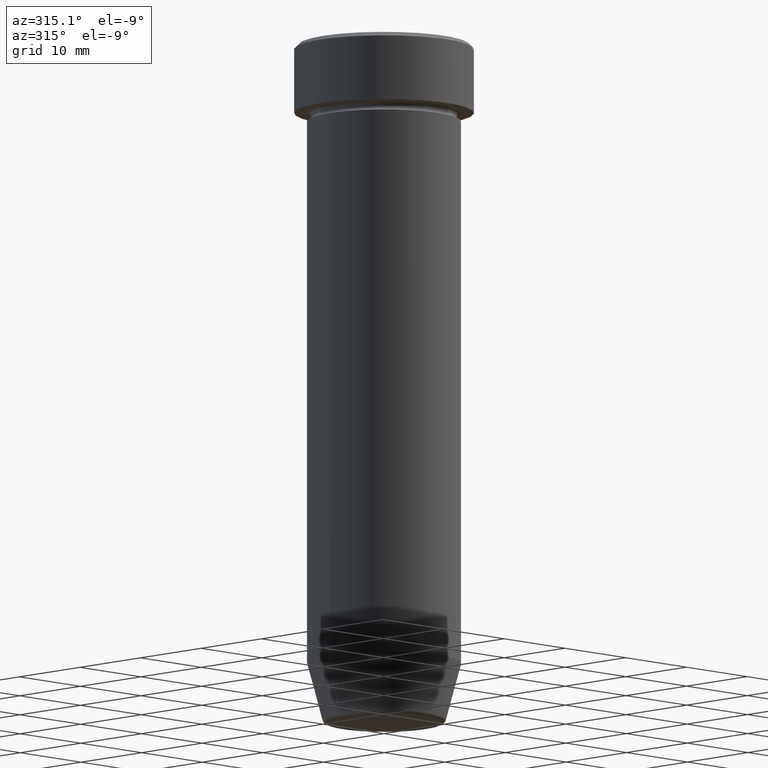
[diagram: clean part render]
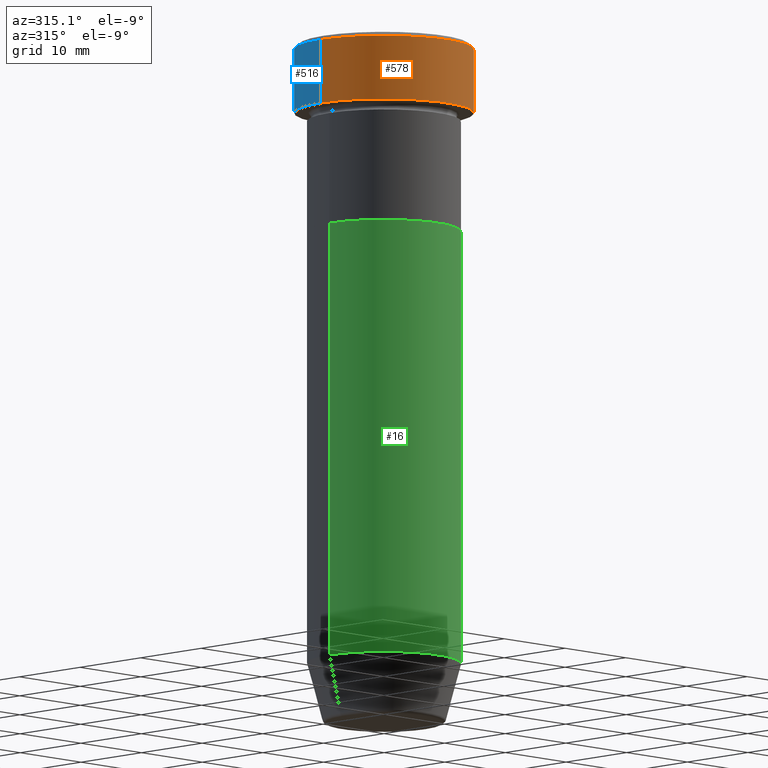
[diagram: same view with three faces highlighted in distinct colors, each labeled with its STEP entity id]
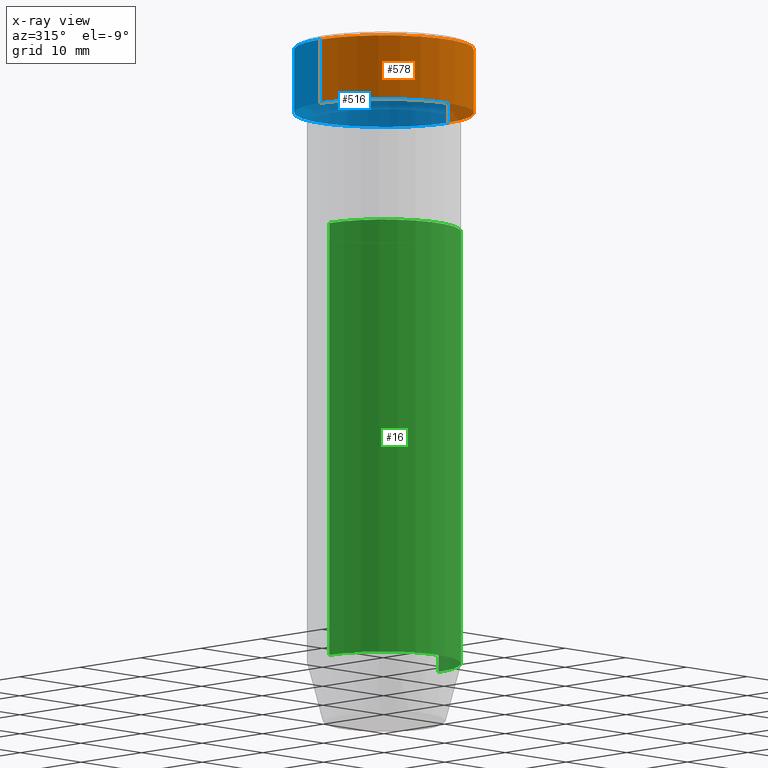
[diagram: x-ray of the same camera — body ghosted, the three highlighted faces saturated]
A machine part, auxiliary view with three faces highlighted in distinct colors.
The next image is the same camera in x-ray (body ghosted, the three faces saturated) — at least one of them is partly hidden behind the body in this view.
Their STEP definitions:

[orange] entity #578 — the highlighted cylindrical surface (partial cylindrical patch) has radius 10.5 mm, axis along (-0, -0, 1).
#1 = FACE_OUTER_BOUND ( 'NONE', #221, .T. ) ;
#4 = VECTOR ( 'NONE', #436, 1000.000000000000000 ) ;
#6 = AXIS2_PLACEMENT_3D ( 'NONE', #330, #506, #283 ) ;
#9 = VERTEX_POINT ( 'NONE', #338 ) ;
#18 = DIRECTION ( 'NONE',  ( 1.000000000000000000, 0.000000000000000000, 0.000000000000000000 ) ) ;
#48 = EDGE_CURVE ( 'NONE', #573, #9, #319, .T. ) ;
#139 = EDGE_CURVE ( 'NONE', #573, #373, #538, .T. ) ;
#144 = ORIENTED_EDGE ( 'NONE', *, *, #181, .T. ) ;
#153 = CYLINDRICAL_SURFACE ( 'NONE', #6, 10.50000000000000000 ) ;
#181 = EDGE_CURVE ( 'NONE', #9, #236, #419, .T. ) ;
#192 = VECTOR ( 'NONE', #462, 1000.000000000000000 ) ;
#218 = ORIENTED_EDGE ( 'NONE', *, *, #139, .F. ) ;
#221 = EDGE_LOOP ( 'NONE', ( #218, #292, #144, #228 ) ) ;
#228 = ORIENTED_EDGE ( 'NONE', *, *, #554, .T. ) ;
#236 = VERTEX_POINT ( 'NONE', #241 ) ;
#241 = CARTESIAN_POINT ( 'NONE',  ( 10.50000000000000000, 0.000000000000000000, -0.5000000000000023315 ) ) ;
#280 = CIRCLE ( 'NONE', #359, 10.50000000000000000 ) ;
#281 = DIRECTION ( 'NONE',  ( 1.000000000000000000, 0.000000000000000000, 0.000000000000000000 ) ) ;
#283 = DIRECTION ( 'NONE',  ( 1.000000000000000000, 0.000000000000000000, 0.000000000000000000 ) ) ;
#292 = ORIENTED_EDGE ( 'NONE', *, *, #48, .T. ) ;
#308 = CARTESIAN_POINT ( 'NONE',  ( -10.50000000000000000, 1.285879139104720831E-15, 0.000000000000000000 ) ) ;
#314 = CARTESIAN_POINT ( 'NONE',  ( 10.50000000000000000, 0.000000000000000000, 0.000000000000000000 ) ) ;
#319 = CIRCLE ( 'NONE', #585, 10.50000000000000000 ) ;
#330 = CARTESIAN_POINT ( 'NONE',  ( 0.000000000000000000, 0.000000000000000000, 0.000000000000000000 ) ) ;
#338 = CARTESIAN_POINT ( 'NONE',  ( 10.50000000000000000, 0.000000000000000000, -8.000000000000000000 ) ) ;
#344 = DIRECTION ( 'NONE',  ( -0.000000000000000000, -0.000000000000000000, 1.000000000000000000 ) ) ;
#359 = AXIS2_PLACEMENT_3D ( 'NONE', #425, #559, #281 ) ;
#373 = VERTEX_POINT ( 'NONE', #521 ) ;
#419 = LINE ( 'NONE', #314, #192 ) ;
#425 = CARTESIAN_POINT ( 'NONE',  ( 0.000000000000000000, 0.000000000000000000, -0.5000000000000023315 ) ) ;
#436 = DIRECTION ( 'NONE',  ( -0.000000000000000000, -0.000000000000000000, 1.000000000000000000 ) ) ;
#462 = DIRECTION ( 'NONE',  ( -0.000000000000000000, -0.000000000000000000, 1.000000000000000000 ) ) ;
#473 = CARTESIAN_POINT ( 'NONE',  ( -10.50000000000000000, 1.285879139104720831E-15, -8.000000000000000000 ) ) ;
#491 = CARTESIAN_POINT ( 'NONE',  ( 0.000000000000000000, 0.000000000000000000, -8.000000000000000000 ) ) ;
#506 = DIRECTION ( 'NONE',  ( -0.000000000000000000, -0.000000000000000000, 1.000000000000000000 ) ) ;
#521 = CARTESIAN_POINT ( 'NONE',  ( -10.50000000000000000, 1.285879139104720831E-15, -0.5000000000000023315 ) ) ;
#538 = LINE ( 'NONE', #308, #4 ) ;
#554 = EDGE_CURVE ( 'NONE', #236, #373, #280, .T. ) ;
#559 = DIRECTION ( 'NONE',  ( 0.000000000000000000, 0.000000000000000000, -1.000000000000000000 ) ) ;
#573 = VERTEX_POINT ( 'NONE', #473 ) ;
#578 = ADVANCED_FACE ( 'NONE', ( #1 ), #153, .T. ) ;
#585 = AXIS2_PLACEMENT_3D ( 'NONE', #491, #344, #18 ) ;

[blue] entity #516 — the highlighted cylindrical surface (partial cylindrical patch) has radius 10.5 mm, axis along (-0, -0, 1).
#4 = VECTOR ( 'NONE', #436, 1000.000000000000000 ) ;
#9 = VERTEX_POINT ( 'NONE', #338 ) ;
#84 = DIRECTION ( 'NONE',  ( 1.000000000000000000, 0.000000000000000000, 0.000000000000000000 ) ) ;
#92 = DIRECTION ( 'NONE',  ( 1.000000000000000000, 0.000000000000000000, 0.000000000000000000 ) ) ;
#96 = ORIENTED_EDGE ( 'NONE', *, *, #168, .T. ) ;
#119 = ORIENTED_EDGE ( 'NONE', *, *, #369, .T. ) ;
#139 = EDGE_CURVE ( 'NONE', #573, #373, #538, .T. ) ;
#156 = EDGE_LOOP ( 'NONE', ( #119, #279, #96, #555 ) ) ;
#168 = EDGE_CURVE ( 'NONE', #373, #236, #509, .T. ) ;
#173 = CYLINDRICAL_SURFACE ( 'NONE', #575, 10.50000000000000000 ) ;
#181 = EDGE_CURVE ( 'NONE', #9, #236, #419, .T. ) ;
#186 = AXIS2_PLACEMENT_3D ( 'NONE', #404, #520, #478 ) ;
#192 = VECTOR ( 'NONE', #462, 1000.000000000000000 ) ;
#235 = DIRECTION ( 'NONE',  ( 0.000000000000000000, 0.000000000000000000, -1.000000000000000000 ) ) ;
#236 = VERTEX_POINT ( 'NONE', #241 ) ;
#241 = CARTESIAN_POINT ( 'NONE',  ( 10.50000000000000000, 0.000000000000000000, -0.5000000000000023315 ) ) ;
#279 = ORIENTED_EDGE ( 'NONE', *, *, #139, .T. ) ;
#308 = CARTESIAN_POINT ( 'NONE',  ( -10.50000000000000000, 1.285879139104720831E-15, 0.000000000000000000 ) ) ;
#313 = FACE_OUTER_BOUND ( 'NONE', #156, .T. ) ;
#314 = CARTESIAN_POINT ( 'NONE',  ( 10.50000000000000000, 0.000000000000000000, 0.000000000000000000 ) ) ;
#338 = CARTESIAN_POINT ( 'NONE',  ( 10.50000000000000000, 0.000000000000000000, -8.000000000000000000 ) ) ;
#369 = EDGE_CURVE ( 'NONE', #9, #573, #561, .T. ) ;
#373 = VERTEX_POINT ( 'NONE', #521 ) ;
#404 = CARTESIAN_POINT ( 'NONE',  ( 0.000000000000000000, 0.000000000000000000, -8.000000000000000000 ) ) ;
#419 = LINE ( 'NONE', #314, #192 ) ;
#420 = DIRECTION ( 'NONE',  ( -0.000000000000000000, -0.000000000000000000, 1.000000000000000000 ) ) ;
#436 = DIRECTION ( 'NONE',  ( -0.000000000000000000, -0.000000000000000000, 1.000000000000000000 ) ) ;
#462 = DIRECTION ( 'NONE',  ( -0.000000000000000000, -0.000000000000000000, 1.000000000000000000 ) ) ;
#473 = CARTESIAN_POINT ( 'NONE',  ( -10.50000000000000000, 1.285879139104720831E-15, -8.000000000000000000 ) ) ;
#478 = DIRECTION ( 'NONE',  ( 1.000000000000000000, 0.000000000000000000, 0.000000000000000000 ) ) ;
#498 = CARTESIAN_POINT ( 'NONE',  ( 0.000000000000000000, 0.000000000000000000, 0.000000000000000000 ) ) ;
#509 = CIRCLE ( 'NONE', #548, 10.50000000000000000 ) ;
#516 = ADVANCED_FACE ( 'NONE', ( #313 ), #173, .T. ) ;
#520 = DIRECTION ( 'NONE',  ( -0.000000000000000000, -0.000000000000000000, 1.000000000000000000 ) ) ;
#521 = CARTESIAN_POINT ( 'NONE',  ( -10.50000000000000000, 1.285879139104720831E-15, -0.5000000000000023315 ) ) ;
#538 = LINE ( 'NONE', #308, #4 ) ;
#546 = CARTESIAN_POINT ( 'NONE',  ( 0.000000000000000000, 0.000000000000000000, -0.5000000000000023315 ) ) ;
#548 = AXIS2_PLACEMENT_3D ( 'NONE', #546, #235, #84 ) ;
#555 = ORIENTED_EDGE ( 'NONE', *, *, #181, .F. ) ;
#561 = CIRCLE ( 'NONE', #186, 10.50000000000000000 ) ;
#573 = VERTEX_POINT ( 'NONE', #473 ) ;
#575 = AXIS2_PLACEMENT_3D ( 'NONE', #498, #420, #92 ) ;

[green] entity #16 — the highlighted cylindrical surface (partial cylindrical patch) has radius 9 mm, axis along (-0, -0, 1).
#12 = DIRECTION ( 'NONE',  ( 1.000000000000000000, 0.000000000000000000, 0.000000000000000000 ) ) ;
#16 = ADVANCED_FACE ( 'NONE', ( #249 ), #255, .T. ) ;
#32 = VERTEX_POINT ( 'NONE', #577 ) ;
#35 = CIRCLE ( 'NONE', #81, 9.000000000000000000 ) ;
#43 = ORIENTED_EDGE ( 'NONE', *, *, #135, .T. ) ;
#45 = DIRECTION ( 'NONE',  ( -0.000000000000000000, -0.000000000000000000, 1.000000000000000000 ) ) ;
#80 = VECTOR ( 'NONE', #146, 1000.000000000000000 ) ;
#81 = AXIS2_PLACEMENT_3D ( 'NONE', #598, #45, #517 ) ;
#89 = CARTESIAN_POINT ( 'NONE',  ( 9.000000000000000000, 0.000000000000000000, -22.00000000000000000 ) ) ;
#135 = EDGE_CURVE ( 'NONE', #32, #408, #212, .T. ) ;
#146 = DIRECTION ( 'NONE',  ( -0.000000000000000000, -0.000000000000000000, 1.000000000000000000 ) ) ;
#167 = DIRECTION ( 'NONE',  ( -0.000000000000000000, -0.000000000000000000, 1.000000000000000000 ) ) ;
#172 = CARTESIAN_POINT ( 'NONE',  ( 0.000000000000000000, 0.000000000000000000, 0.000000000000000000 ) ) ;
#189 = VERTEX_POINT ( 'NONE', #542 ) ;
#190 = CARTESIAN_POINT ( 'NONE',  ( 9.000000000000000000, 0.000000000000000000, 0.000000000000000000 ) ) ;
#197 = CARTESIAN_POINT ( 'NONE',  ( -9.000000000000000000, 1.102182119232617714E-15, 0.000000000000000000 ) ) ;
#198 = EDGE_LOOP ( 'NONE', ( #253, #43, #551, #486 ) ) ;
#199 = LINE ( 'NONE', #197, #357 ) ;
#200 = EDGE_CURVE ( 'NONE', #32, #189, #199, .T. ) ;
#212 = CIRCLE ( 'NONE', #557, 9.000000000000000000 ) ;
#226 = CARTESIAN_POINT ( 'NONE',  ( 9.000000000000000000, 0.000000000000000000, -73.00000000000000000 ) ) ;
#249 = FACE_OUTER_BOUND ( 'NONE', #198, .T. ) ;
#253 = ORIENTED_EDGE ( 'NONE', *, *, #200, .F. ) ;
#255 = CYLINDRICAL_SURFACE ( 'NONE', #574, 9.000000000000000000 ) ;
#299 = DIRECTION ( 'NONE',  ( 1.000000000000000000, 0.000000000000000000, 0.000000000000000000 ) ) ;
#324 = LINE ( 'NONE', #190, #80 ) ;
#353 = DIRECTION ( 'NONE',  ( -0.000000000000000000, -0.000000000000000000, 1.000000000000000000 ) ) ;
#357 = VECTOR ( 'NONE', #475, 1000.000000000000000 ) ;
#408 = VERTEX_POINT ( 'NONE', #226 ) ;
#416 = VERTEX_POINT ( 'NONE', #89 ) ;
#475 = DIRECTION ( 'NONE',  ( -0.000000000000000000, -0.000000000000000000, 1.000000000000000000 ) ) ;
#482 = CARTESIAN_POINT ( 'NONE',  ( 0.000000000000000000, 0.000000000000000000, -73.00000000000000000 ) ) ;
#486 = ORIENTED_EDGE ( 'NONE', *, *, #556, .F. ) ;
#517 = DIRECTION ( 'NONE',  ( 1.000000000000000000, 0.000000000000000000, 0.000000000000000000 ) ) ;
#542 = CARTESIAN_POINT ( 'NONE',  ( -9.000000000000000000, 1.102182119232617714E-15, -22.00000000000000000 ) ) ;
#551 = ORIENTED_EDGE ( 'NONE', *, *, #568, .T. ) ;
#556 = EDGE_CURVE ( 'NONE', #189, #416, #35, .T. ) ;
#557 = AXIS2_PLACEMENT_3D ( 'NONE', #482, #353, #12 ) ;
#568 = EDGE_CURVE ( 'NONE', #408, #416, #324, .T. ) ;
#574 = AXIS2_PLACEMENT_3D ( 'NONE', #172, #167, #299 ) ;
#577 = CARTESIAN_POINT ( 'NONE',  ( -9.000000000000000000, 1.102182119232617714E-15, -73.00000000000000000 ) ) ;
#598 = CARTESIAN_POINT ( 'NONE',  ( 0.000000000000000000, 0.000000000000000000, -22.00000000000000000 ) ) ;